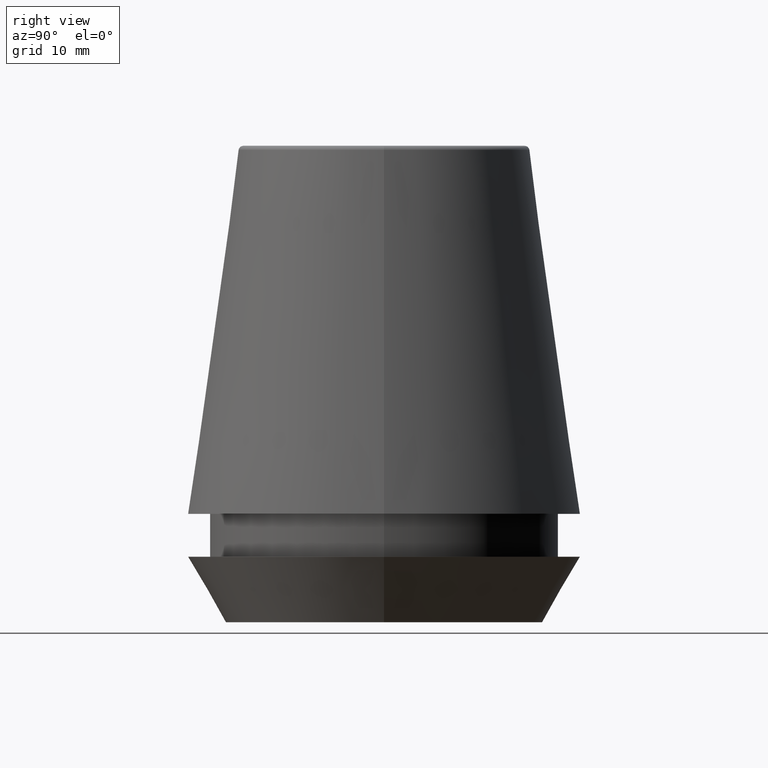
[diagram: clean part render]
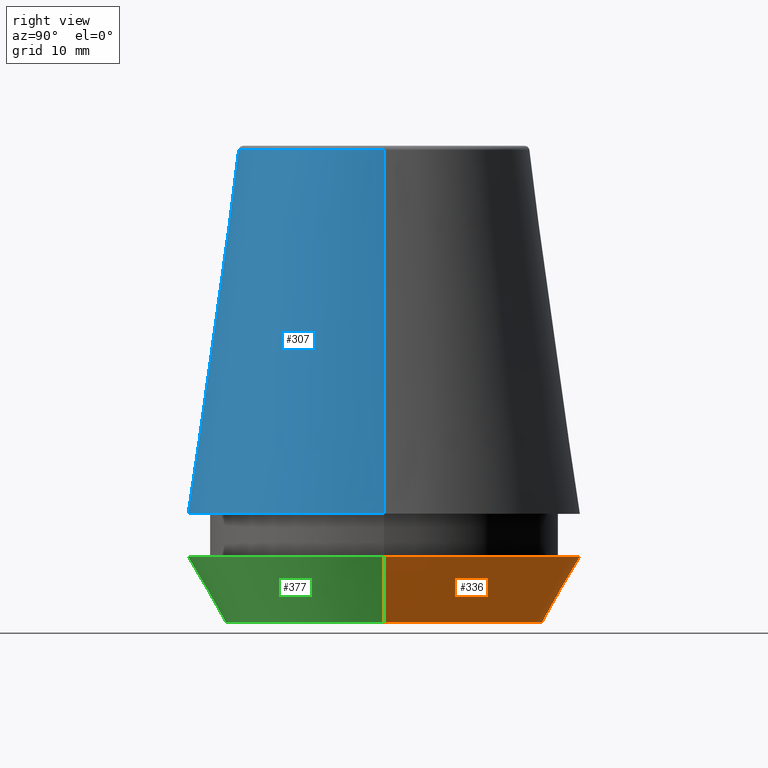
[diagram: same view with three faces highlighted in distinct colors, each labeled with its STEP entity id]
A machine part, right view with three faces highlighted in distinct colors.
Their STEP definitions:

[orange] entity #336 — the highlighted conical surface has half-angle 30 deg.
#5 = CARTESIAN_POINT ( 'NONE',  ( 13.32457351945710200, 0.0000000000000000000, 0.0000000000000000000 ) ) ;
#8 = VERTEX_POINT ( 'NONE', #136 ) ;
#14 = AXIS2_PLACEMENT_3D ( 'NONE', #174, #96, #296 ) ;
#23 = CARTESIAN_POINT ( 'NONE',  ( -13.32457351945710200, 1.631789631060672300E-015, 0.0000000000000000000 ) ) ;
#45 = AXIS2_PLACEMENT_3D ( 'NONE', #293, #201, #169 ) ;
#47 = CARTESIAN_POINT ( 'NONE',  ( 13.32457351945710200, 0.0000000000000000000, 0.0000000000000000000 ) ) ;
#65 = VECTOR ( 'NONE', #383, 999.9999999999998900 ) ;
#67 = VERTEX_POINT ( 'NONE', #278 ) ;
#72 = FACE_OUTER_BOUND ( 'NONE', #187, .T. ) ;
#86 = VERTEX_POINT ( 'NONE', #214 ) ;
#94 = AXIS2_PLACEMENT_3D ( 'NONE', #243, #266, #326 ) ;
#96 = DIRECTION ( 'NONE',  ( -0.0000000000000000000, -0.0000000000000000000, 1.000000000000000000 ) ) ;
#133 = CONICAL_SURFACE ( 'NONE', #14, 13.32457351945710200, 0.5235987755982927100 ) ;
#136 = CARTESIAN_POINT ( 'NONE',  ( -16.50000000000000000, 2.020667218593133100E-015, 5.500000000000005300 ) ) ;
#143 = VECTOR ( 'NONE', #179, 999.9999999999998900 ) ;
#165 = ORIENTED_EDGE ( 'NONE', *, *, #264, .T. ) ;
#169 = DIRECTION ( 'NONE',  ( 1.000000000000000000, 0.0000000000000000000, 0.0000000000000000000 ) ) ;
#174 = CARTESIAN_POINT ( 'NONE',  ( 0.0000000000000000000, 0.0000000000000000000, 0.0000000000000000000 ) ) ;
#179 = DIRECTION ( 'NONE',  ( 0.4999999999999947300, 0.0000000000000000000, 0.8660254037844418200 ) ) ;
#187 = EDGE_LOOP ( 'NONE', ( #165, #197, #306, #260 ) ) ;
#192 = CIRCLE ( 'NONE', #94, 16.50000000000000000 ) ;
#197 = ORIENTED_EDGE ( 'NONE', *, *, #213, .T. ) ;
#201 = DIRECTION ( 'NONE',  ( -0.0000000000000000000, -0.0000000000000000000, 1.000000000000000000 ) ) ;
#209 = EDGE_CURVE ( 'NONE', #86, #8, #192, .T. ) ;
#213 = EDGE_CURVE ( 'NONE', #67, #8, #238, .T. ) ;
#214 = CARTESIAN_POINT ( 'NONE',  ( 16.50000000000000000, 0.0000000000000000000, 5.500000000000005300 ) ) ;
#215 = LINE ( 'NONE', #47, #143 ) ;
#238 = LINE ( 'NONE', #23, #65 ) ;
#243 = CARTESIAN_POINT ( 'NONE',  ( 0.0000000000000000000, 0.0000000000000000000, 5.500000000000005300 ) ) ;
#251 = VERTEX_POINT ( 'NONE', #5 ) ;
#260 = ORIENTED_EDGE ( 'NONE', *, *, #353, .F. ) ;
#264 = EDGE_CURVE ( 'NONE', #251, #67, #342, .T. ) ;
#266 = DIRECTION ( 'NONE',  ( -0.0000000000000000000, -0.0000000000000000000, 1.000000000000000000 ) ) ;
#278 = CARTESIAN_POINT ( 'NONE',  ( -13.32457351945710200, 1.826228424826902600E-015, 0.0000000000000000000 ) ) ;
#293 = CARTESIAN_POINT ( 'NONE',  ( 0.0000000000000000000, 0.0000000000000000000, 0.0000000000000000000 ) ) ;
#296 = DIRECTION ( 'NONE',  ( 1.000000000000000000, 0.0000000000000000000, 0.0000000000000000000 ) ) ;
#306 = ORIENTED_EDGE ( 'NONE', *, *, #209, .F. ) ;
#326 = DIRECTION ( 'NONE',  ( 1.000000000000000000, 0.0000000000000000000, 0.0000000000000000000 ) ) ;
#336 = ADVANCED_FACE ( 'NONE', ( #72 ), #133, .T. ) ;
#342 = CIRCLE ( 'NONE', #45, 13.32457351945710200 ) ;
#353 = EDGE_CURVE ( 'NONE', #251, #86, #215, .T. ) ;
#383 = DIRECTION ( 'NONE',  ( -0.4999999999999947300, 6.123233995736700700E-017, 0.8660254037844418200 ) ) ;

[blue] entity #307 — the highlighted conical surface has half-angle 8 deg.
#29 = DIRECTION ( 'NONE',  ( 0.1391731009600586900, 1.704378926181473100E-017, -0.9902680687415712500 ) ) ;
#34 = AXIS2_PLACEMENT_3D ( 'NONE', #110, #113, #221 ) ;
#46 = EDGE_CURVE ( 'NONE', #247, #341, #344, .T. ) ;
#48 = EDGE_LOOP ( 'NONE', ( #146, #263, #288, #59 ) ) ;
#57 = CARTESIAN_POINT ( 'NONE',  ( 0.0000000000000000000, 0.0000000000000000000, 39.65566924038402900 ) ) ;
#59 = ORIENTED_EDGE ( 'NONE', *, *, #177, .T. ) ;
#61 = CONICAL_SURFACE ( 'NONE', #34, 16.50032537154048700, 0.1396263401595395900 ) ;
#102 = CARTESIAN_POINT ( 'NONE',  ( 16.50032537154048700, 2.020707065114692300E-015, 9.099999999999997900 ) ) ;
#110 = CARTESIAN_POINT ( 'NONE',  ( 0.0000000000000000000, 0.0000000000000000000, 9.099999999999997900 ) ) ;
#112 = CARTESIAN_POINT ( 'NONE',  ( 16.50032537154048700, 2.020707065114692300E-015, 9.099999999999997900 ) ) ;
#113 = DIRECTION ( 'NONE',  ( 0.0000000000000000000, 0.0000000000000000000, -1.000000000000000000 ) ) ;
#116 = CIRCLE ( 'NONE', #262, 12.20600611160694300 ) ;
#122 = EDGE_CURVE ( 'NONE', #247, #234, #116, .T. ) ;
#129 = CIRCLE ( 'NONE', #141, 16.50032537154048700 ) ;
#140 = VECTOR ( 'NONE', #338, 1000.000000000000000 ) ;
#141 = AXIS2_PLACEMENT_3D ( 'NONE', #237, #268, #371 ) ;
#146 = ORIENTED_EDGE ( 'NONE', *, *, #369, .F. ) ;
#177 = EDGE_CURVE ( 'NONE', #341, #289, #129, .T. ) ;
#216 = CARTESIAN_POINT ( 'NONE',  ( -16.50032537154048700, 0.0000000000000000000, 9.099999999999997900 ) ) ;
#221 = DIRECTION ( 'NONE',  ( -1.000000000000000000, 0.0000000000000000000, 0.0000000000000000000 ) ) ;
#234 = VERTEX_POINT ( 'NONE', #339 ) ;
#236 = CARTESIAN_POINT ( 'NONE',  ( -16.50032537154048700, 0.0000000000000000000, 9.099999999999997900 ) ) ;
#237 = CARTESIAN_POINT ( 'NONE',  ( 0.0000000000000000000, 0.0000000000000000000, 9.099999999999997900 ) ) ;
#247 = VERTEX_POINT ( 'NONE', #363 ) ;
#262 = AXIS2_PLACEMENT_3D ( 'NONE', #57, #331, #304 ) ;
#263 = ORIENTED_EDGE ( 'NONE', *, *, #122, .F. ) ;
#267 = LINE ( 'NONE', #102, #360 ) ;
#268 = DIRECTION ( 'NONE',  ( -0.0000000000000000000, -0.0000000000000000000, 1.000000000000000000 ) ) ;
#288 = ORIENTED_EDGE ( 'NONE', *, *, #46, .T. ) ;
#289 = VERTEX_POINT ( 'NONE', #112 ) ;
#304 = DIRECTION ( 'NONE',  ( 1.000000000000000000, 0.0000000000000000000, 0.0000000000000000000 ) ) ;
#307 = ADVANCED_FACE ( 'NONE', ( #332 ), #61, .T. ) ;
#331 = DIRECTION ( 'NONE',  ( -0.0000000000000000000, -0.0000000000000000000, 1.000000000000000000 ) ) ;
#332 = FACE_OUTER_BOUND ( 'NONE', #48, .T. ) ;
#338 = DIRECTION ( 'NONE',  ( -0.1391731009600586900, 0.0000000000000000000, -0.9902680687415712500 ) ) ;
#339 = CARTESIAN_POINT ( 'NONE',  ( 12.20600611160694300, 1.757755848304969800E-015, 39.65566924038402900 ) ) ;
#341 = VERTEX_POINT ( 'NONE', #236 ) ;
#344 = LINE ( 'NONE', #216, #140 ) ;
#360 = VECTOR ( 'NONE', #29, 1000.000000000000000 ) ;
#363 = CARTESIAN_POINT ( 'NONE',  ( -12.20600611160694300, 0.0000000000000000000, 39.65566924038402900 ) ) ;
#369 = EDGE_CURVE ( 'NONE', #234, #289, #267, .T. ) ;
#371 = DIRECTION ( 'NONE',  ( 1.000000000000000000, 0.0000000000000000000, 0.0000000000000000000 ) ) ;

[green] entity #377 — the highlighted conical surface has half-angle 30 deg.
#5 = CARTESIAN_POINT ( 'NONE',  ( 13.32457351945710200, 0.0000000000000000000, 0.0000000000000000000 ) ) ;
#6 = CIRCLE ( 'NONE', #246, 16.50000000000000000 ) ;
#8 = VERTEX_POINT ( 'NONE', #136 ) ;
#23 = CARTESIAN_POINT ( 'NONE',  ( -13.32457351945710200, 1.631789631060672300E-015, 0.0000000000000000000 ) ) ;
#37 = DIRECTION ( 'NONE',  ( -0.0000000000000000000, -0.0000000000000000000, 1.000000000000000000 ) ) ;
#47 = CARTESIAN_POINT ( 'NONE',  ( 13.32457351945710200, 0.0000000000000000000, 0.0000000000000000000 ) ) ;
#53 = CARTESIAN_POINT ( 'NONE',  ( 0.0000000000000000000, 0.0000000000000000000, 0.0000000000000000000 ) ) ;
#65 = VECTOR ( 'NONE', #383, 999.9999999999998900 ) ;
#67 = VERTEX_POINT ( 'NONE', #278 ) ;
#69 = DIRECTION ( 'NONE',  ( 1.000000000000000000, 0.0000000000000000000, 0.0000000000000000000 ) ) ;
#76 = CONICAL_SURFACE ( 'NONE', #137, 13.32457351945710200, 0.5235987755982927100 ) ;
#86 = VERTEX_POINT ( 'NONE', #214 ) ;
#88 = DIRECTION ( 'NONE',  ( 1.000000000000000000, 0.0000000000000000000, 0.0000000000000000000 ) ) ;
#108 = ORIENTED_EDGE ( 'NONE', *, *, #213, .F. ) ;
#136 = CARTESIAN_POINT ( 'NONE',  ( -16.50000000000000000, 2.020667218593133100E-015, 5.500000000000005300 ) ) ;
#137 = AXIS2_PLACEMENT_3D ( 'NONE', #203, #37, #69 ) ;
#143 = VECTOR ( 'NONE', #179, 999.9999999999998900 ) ;
#163 = AXIS2_PLACEMENT_3D ( 'NONE', #53, #384, #88 ) ;
#179 = DIRECTION ( 'NONE',  ( 0.4999999999999947300, 0.0000000000000000000, 0.8660254037844418200 ) ) ;
#183 = EDGE_CURVE ( 'NONE', #8, #86, #6, .T. ) ;
#190 = EDGE_CURVE ( 'NONE', #67, #251, #387, .T. ) ;
#200 = EDGE_LOOP ( 'NONE', ( #108, #381, #297, #204 ) ) ;
#203 = CARTESIAN_POINT ( 'NONE',  ( 0.0000000000000000000, 0.0000000000000000000, 0.0000000000000000000 ) ) ;
#204 = ORIENTED_EDGE ( 'NONE', *, *, #183, .F. ) ;
#213 = EDGE_CURVE ( 'NONE', #67, #8, #238, .T. ) ;
#214 = CARTESIAN_POINT ( 'NONE',  ( 16.50000000000000000, 0.0000000000000000000, 5.500000000000005300 ) ) ;
#215 = LINE ( 'NONE', #47, #143 ) ;
#238 = LINE ( 'NONE', #23, #65 ) ;
#240 = DIRECTION ( 'NONE',  ( 1.000000000000000000, 0.0000000000000000000, 0.0000000000000000000 ) ) ;
#246 = AXIS2_PLACEMENT_3D ( 'NONE', #329, #272, #240 ) ;
#251 = VERTEX_POINT ( 'NONE', #5 ) ;
#272 = DIRECTION ( 'NONE',  ( -0.0000000000000000000, -0.0000000000000000000, 1.000000000000000000 ) ) ;
#277 = FACE_OUTER_BOUND ( 'NONE', #200, .T. ) ;
#278 = CARTESIAN_POINT ( 'NONE',  ( -13.32457351945710200, 1.826228424826902600E-015, 0.0000000000000000000 ) ) ;
#297 = ORIENTED_EDGE ( 'NONE', *, *, #353, .T. ) ;
#329 = CARTESIAN_POINT ( 'NONE',  ( 0.0000000000000000000, 0.0000000000000000000, 5.500000000000005300 ) ) ;
#353 = EDGE_CURVE ( 'NONE', #251, #86, #215, .T. ) ;
#377 = ADVANCED_FACE ( 'NONE', ( #277 ), #76, .T. ) ;
#381 = ORIENTED_EDGE ( 'NONE', *, *, #190, .T. ) ;
#383 = DIRECTION ( 'NONE',  ( -0.4999999999999947300, 6.123233995736700700E-017, 0.8660254037844418200 ) ) ;
#384 = DIRECTION ( 'NONE',  ( -0.0000000000000000000, -0.0000000000000000000, 1.000000000000000000 ) ) ;
#387 = CIRCLE ( 'NONE', #163, 13.32457351945710200 ) ;